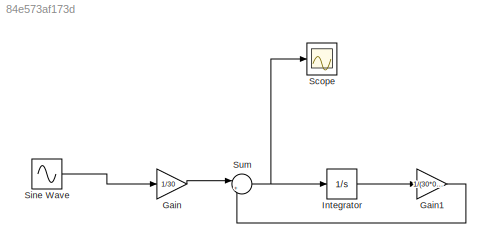
MODEL slx_84e573af173d
KIND model
CONFIG AbsTol = auto
CONFIG EnableMultiTasking = off
CONFIG FixedStep = auto
CONFIG MaxStep = auto
CONFIG MinStep = auto
CONFIG RelTol = 1e-3
CONFIG SampleTimeConstraint = Unconstrained
CONFIG SolverName = VariableStepAuto
CONFIG StartTime = 0.0
CONFIG StopTime = 10
BLOCK [Gain] Gain
  Gain = 1/30
BLOCK [Gain] Gain1
  Gain = 1/(30*0.0237)
BLOCK [Integrator] Integrator
  Ports = [1, 1]
BLOCK [Scope] Scope
  Floating = off
  NumInputPorts = 1
  Ports = [1]
  ScopeSpecificationString = Simulink.scopes.TimeScopeBlockCfg('CurrentConfiguration', extmgr.ConfigurationSet(extmgr.Configuration('Core','General UI',true),extmgr.Configuration('Core','Source UI',true),extmgr.Configuration('Sources','WiredSimulink',true),extmgr.Configuration('Visuals','Time Domain',true,'SerializedDisplays',{struct('MinYLimReal','-0.00439','MaxYLimReal','0.00413','YLabelReal','','MinYLimMag','0.00000','MaxY...<+1352ch>
BLOCK [Sin] Sine Wave
  Amplitude = 0.1
  Frequency = 2*pi
  Ports = [0, 1]
  SampleTime = 0.01
BLOCK [Sum] Sum
  Inputs = |+-
  Ports = [2, 1]
LINE Gain1:1 -> Sum:2
LINE Gain:1 -> Sum:1
LINE Integrator:1 -> Gain1:1
LINE Sine Wave:1 -> Gain:1
NET Sum:1 -> Integrator:1, Scope:1
note: NET lines group one-source signal fan-out (src -> all destinations, sorted); 1:1 wires keep LINE
